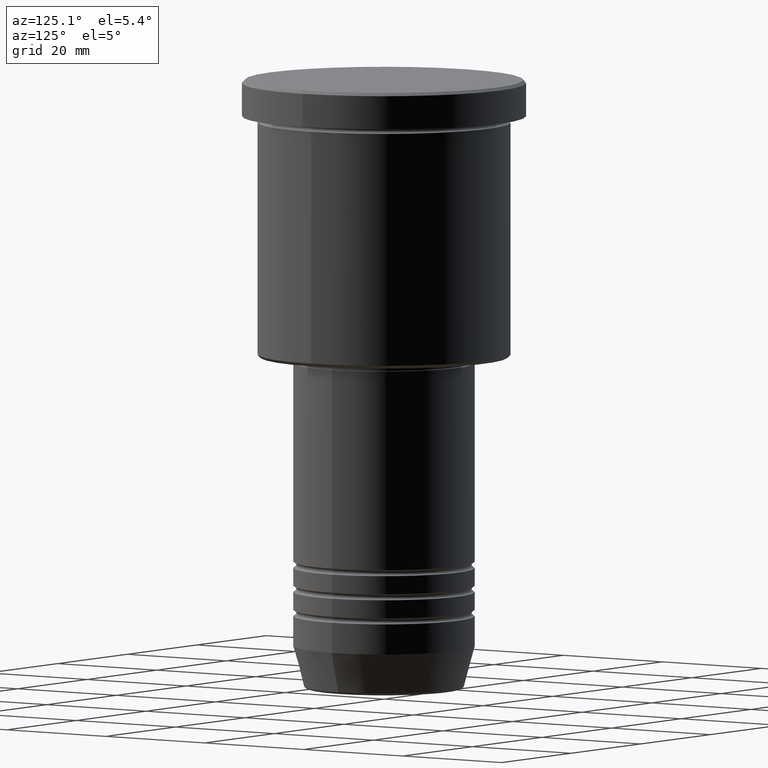
[diagram: clean part render]
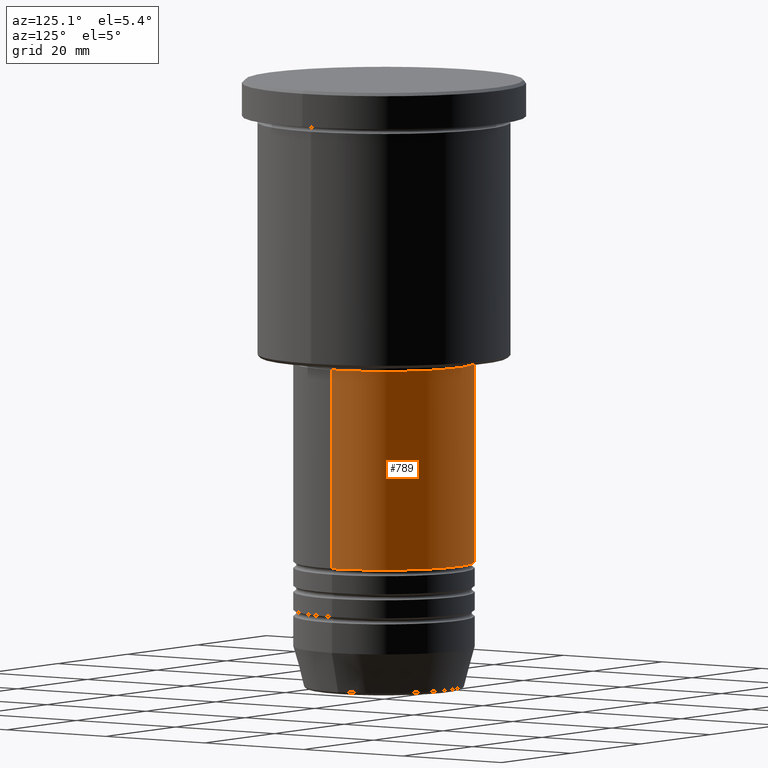
[diagram: same view with one face highlighted and labeled with its STEP entity id]
A machine part, auxiliary view. The second image highlights one B-rep face of the part: STEP entity #789.
In plain terms, the highlighted cylindrical surface (partial cylindrical patch) has radius 15 mm, axis along (-0, -0, 1).
Its self-contained STEP definition (entity closure, byte-faithful):
#95 = CARTESIAN_POINT ( 'NONE',  ( 0.000000000000000000, 0.000000000000000000, 0.000000000000000000 ) ) ;
#135 = CARTESIAN_POINT ( 'NONE',  ( 0.000000000000000000, 0.000000000000000000, -46.99999999999997868 ) ) ;
#150 = DIRECTION ( 'NONE',  ( 1.000000000000000000, 0.000000000000000000, 0.000000000000000000 ) ) ;
#183 = CIRCLE ( 'NONE', #535, 15.00000000000000000 ) ;
#225 = ORIENTED_EDGE ( 'NONE', *, *, #955, .F. ) ;
#236 = ORIENTED_EDGE ( 'NONE', *, *, #281, .F. ) ;
#241 = VERTEX_POINT ( 'NONE', #491 ) ;
#244 = CARTESIAN_POINT ( 'NONE',  ( 15.00000000000000000, 0.000000000000000000, -46.99999999999997868 ) ) ;
#258 = DIRECTION ( 'NONE',  ( 1.000000000000000000, 0.000000000000000000, 0.000000000000000000 ) ) ;
#273 = CYLINDRICAL_SURFACE ( 'NONE', #949, 15.00000000000000000 ) ;
#281 = EDGE_CURVE ( 'NONE', #1054, #338, #183, .T. ) ;
#338 = VERTEX_POINT ( 'NONE', #439 ) ;
#396 = DIRECTION ( 'NONE',  ( -0.000000000000000000, -0.000000000000000000, 1.000000000000000000 ) ) ;
#439 = CARTESIAN_POINT ( 'NONE',  ( -15.00000000000000000, 1.836970198721029589E-15, -46.99999999999997868 ) ) ;
#491 = CARTESIAN_POINT ( 'NONE',  ( -15.00000000000000000, 1.836970198721029589E-15, -79.99999999999988631 ) ) ;
#503 = VECTOR ( 'NONE', #1126, 1000.000000000000000 ) ;
#535 = AXIS2_PLACEMENT_3D ( 'NONE', #135, #954, #150 ) ;
#537 = AXIS2_PLACEMENT_3D ( 'NONE', #1028, #396, #659 ) ;
#572 = LINE ( 'NONE', #940, #663 ) ;
#580 = EDGE_LOOP ( 'NONE', ( #798, #701, #236, #225 ) ) ;
#582 = DIRECTION ( 'NONE',  ( -0.000000000000000000, -0.000000000000000000, 1.000000000000000000 ) ) ;
#659 = DIRECTION ( 'NONE',  ( 1.000000000000000000, 0.000000000000000000, 0.000000000000000000 ) ) ;
#663 = VECTOR ( 'NONE', #582, 1000.000000000000000 ) ;
#701 = ORIENTED_EDGE ( 'NONE', *, *, #994, .T. ) ;
#767 = LINE ( 'NONE', #830, #503 ) ;
#789 = ADVANCED_FACE ( 'NONE', ( #1172 ), #273, .T. ) ;
#798 = ORIENTED_EDGE ( 'NONE', *, *, #902, .T. ) ;
#830 = CARTESIAN_POINT ( 'NONE',  ( 15.00000000000000000, 0.000000000000000000, 0.000000000000000000 ) ) ;
#902 = EDGE_CURVE ( 'NONE', #1150, #241, #1048, .T. ) ;
#940 = CARTESIAN_POINT ( 'NONE',  ( -15.00000000000000000, 1.836970198721029589E-15, 0.000000000000000000 ) ) ;
#949 = AXIS2_PLACEMENT_3D ( 'NONE', #95, #1073, #258 ) ;
#954 = DIRECTION ( 'NONE',  ( -0.000000000000000000, -0.000000000000000000, 1.000000000000000000 ) ) ;
#955 = EDGE_CURVE ( 'NONE', #1150, #1054, #767, .T. ) ;
#959 = CARTESIAN_POINT ( 'NONE',  ( 15.00000000000000000, 0.000000000000000000, -79.99999999999988631 ) ) ;
#994 = EDGE_CURVE ( 'NONE', #241, #338, #572, .T. ) ;
#1028 = CARTESIAN_POINT ( 'NONE',  ( 0.000000000000000000, 0.000000000000000000, -79.99999999999988631 ) ) ;
#1048 = CIRCLE ( 'NONE', #537, 15.00000000000000000 ) ;
#1054 = VERTEX_POINT ( 'NONE', #244 ) ;
#1073 = DIRECTION ( 'NONE',  ( -0.000000000000000000, -0.000000000000000000, 1.000000000000000000 ) ) ;
#1126 = DIRECTION ( 'NONE',  ( -0.000000000000000000, -0.000000000000000000, 1.000000000000000000 ) ) ;
#1150 = VERTEX_POINT ( 'NONE', #959 ) ;
#1172 = FACE_OUTER_BOUND ( 'NONE', #580, .T. ) ;